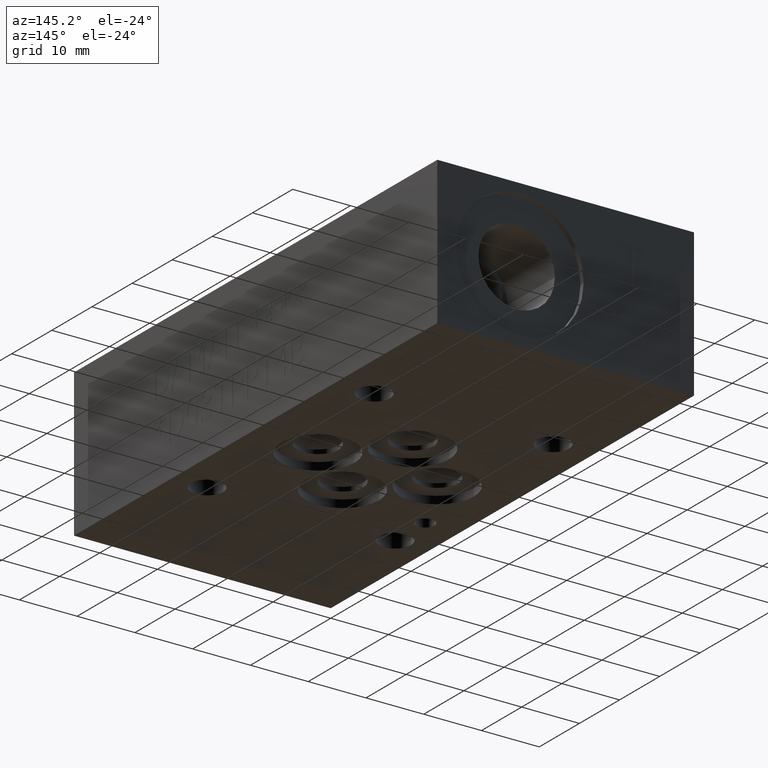
[diagram: clean part render]
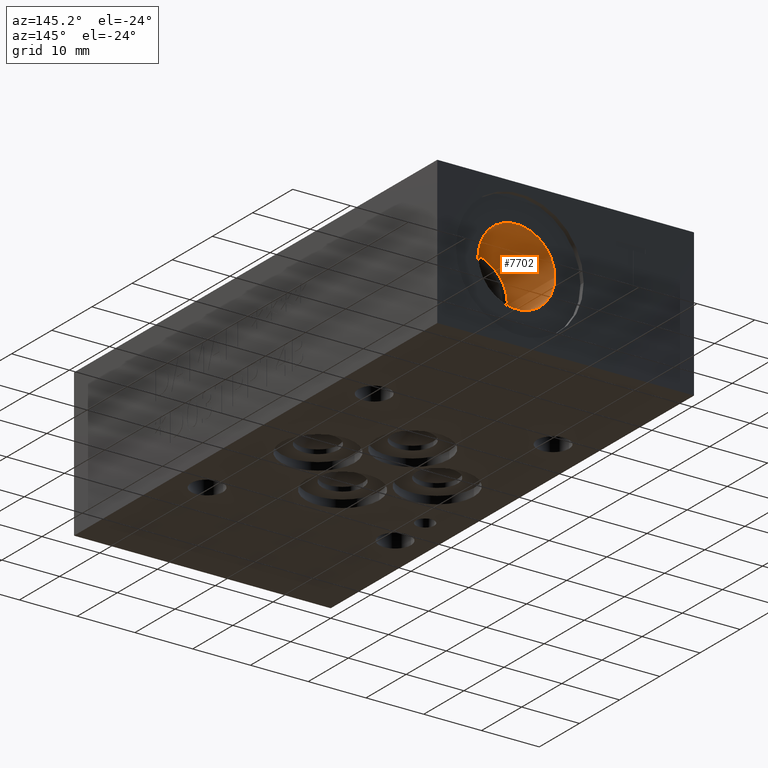
[diagram: same view with one face highlighted and labeled with its STEP entity id]
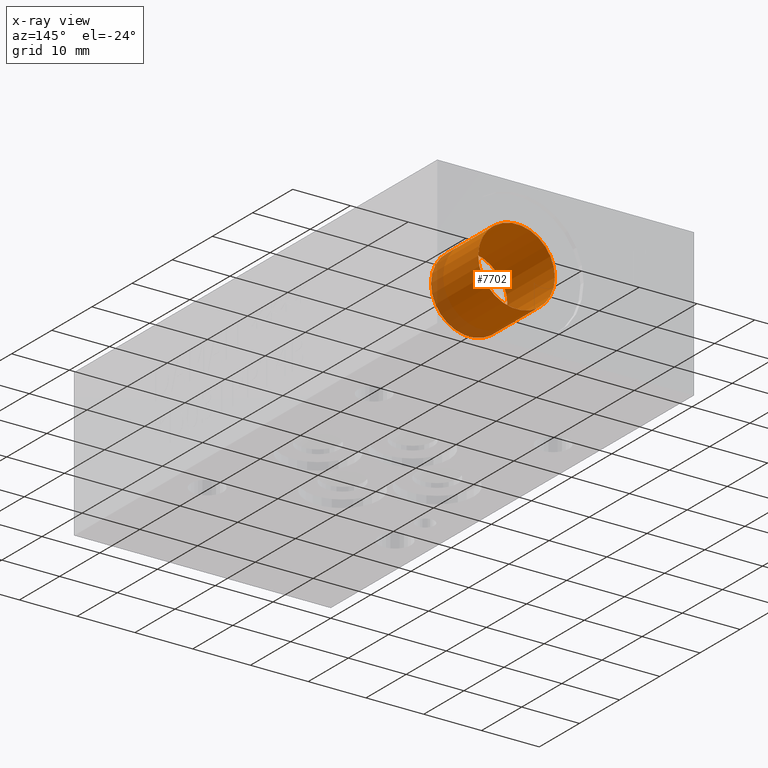
[diagram: x-ray of the same camera — body ghosted, the highlighted face saturated]
A machine part, auxiliary view. The second image highlights one B-rep face of the part: STEP entity #7702.
The next image is the same camera in x-ray: the body ghosted, the highlighted face saturated — about 14% of this face is hidden behind the body in this view.
In plain terms, the highlighted cylindrical surface (bore or boss wall) has radius 6.6294 mm, axis along (0, -1, 0).
Its self-contained STEP definition (entity closure, byte-faithful):
#25=CYLINDRICAL_SURFACE('',#8056,6.6294);
#77=CIRCLE('',#8055,6.6294);
#78=CIRCLE('',#8057,6.6294);
#787=FACE_OUTER_BOUND('',#1222,.T.);
#1222=EDGE_LOOP('',(#6584,#6585,#6586,#6587));
#2067=LINE('',#12784,#2885);
#2885=VECTOR('',#9520,6.6294);
#3572=VERTEX_POINT('',#12780);
#3573=VERTEX_POINT('',#12783);
#4592=EDGE_CURVE('',#3572,#3572,#77,.T.);
#4593=EDGE_CURVE('',#3572,#3573,#2067,.T.);
#4594=EDGE_CURVE('',#3573,#3573,#78,.T.);
#6584=ORIENTED_EDGE('',*,*,#4592,.F.);
#6585=ORIENTED_EDGE('',*,*,#4593,.T.);
#6586=ORIENTED_EDGE('',*,*,#4594,.T.);
#6587=ORIENTED_EDGE('',*,*,#4593,.F.);
#7702=ADVANCED_FACE('',(#787),#25,.F.);
#8055=AXIS2_PLACEMENT_3D('',#12781,#9516,#9517);
#8056=AXIS2_PLACEMENT_3D('',#12782,#9518,#9519);
#8057=AXIS2_PLACEMENT_3D('',#12785,#9521,#9522);
#9516=DIRECTION('center_axis',(0.,-1.,0.));
#9517=DIRECTION('ref_axis',(1.,0.,0.));
#9518=DIRECTION('center_axis',(0.,-1.,0.));
#9519=DIRECTION('ref_axis',(1.,0.,0.));
#9520=DIRECTION('',(0.,-1.,0.));
#9521=DIRECTION('center_axis',(0.,-1.,0.));
#9522=DIRECTION('ref_axis',(1.,0.,0.));
#12780=CARTESIAN_POINT('',(23.5458,89.7128,12.7));
#12781=CARTESIAN_POINT('Origin',(30.1752,89.7128,12.7));
#12782=CARTESIAN_POINT('Origin',(30.1752,83.82,12.7));
#12783=CARTESIAN_POINT('',(23.5458,77.9272,12.7));
#12784=CARTESIAN_POINT('',(23.5458,83.82,12.7));
#12785=CARTESIAN_POINT('Origin',(30.1752,77.9272,12.7));